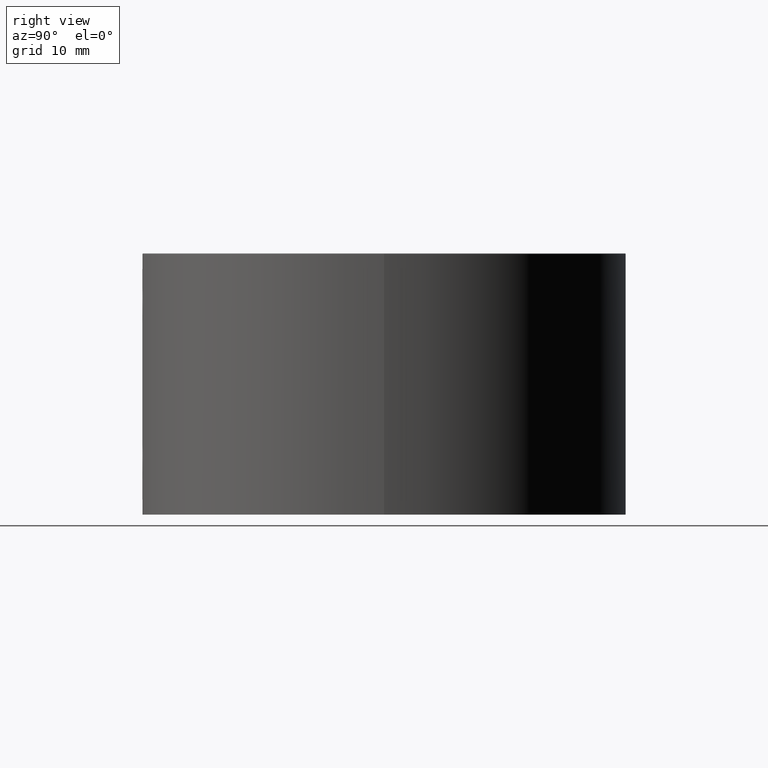
[diagram: clean part render]
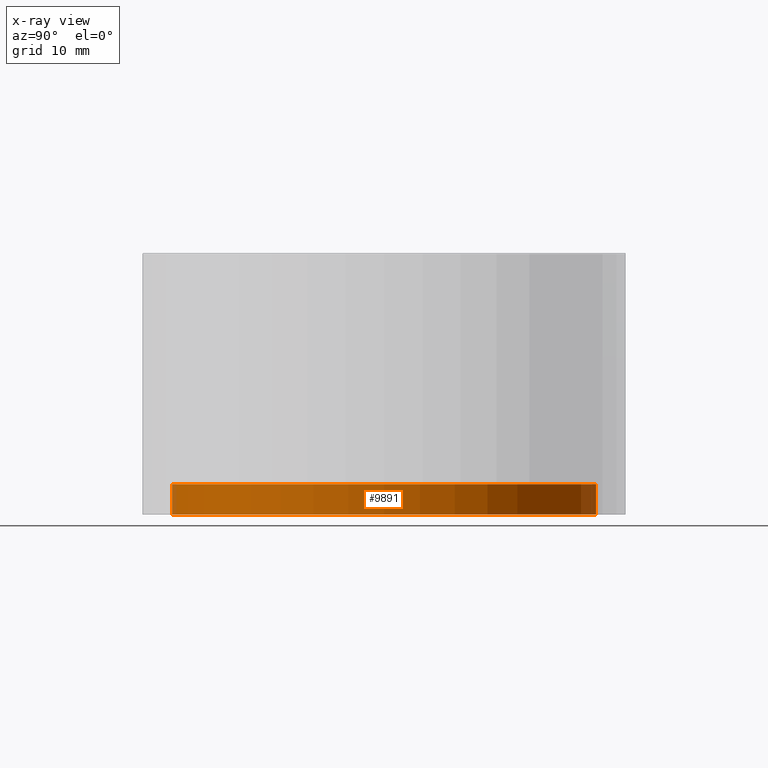
[diagram: x-ray — body ghosted, one internal face saturated and labeled with its STEP entity id]
A machine part, right view, then the same camera in x-ray: the body is ghosted and one INTERNAL B-rep face — a face not visible from any outside direction — is saturated and labeled: STEP entity #9891.
In plain terms, the highlighted cylindrical surface (bore or boss wall) has radius 24.35 mm, axis along (-0, -0, -1).
Its self-contained STEP definition (entity closure, byte-faithful):
#1031 = CARTESIAN_POINT ( 'NONE',  ( 0.000000000000000000, 0.000000000000000000, 0.000000000000000000 ) ) ;
#1238 = EDGE_LOOP ( 'NONE', ( #14457 ) ) ;
#1518 = AXIS2_PLACEMENT_3D ( 'NONE', #1031, #10002, #11138 ) ;
#2032 = CIRCLE ( 'NONE', #16030, 24.35000000000000497 ) ;
#2914 = CIRCLE ( 'NONE', #1518, 24.35000000000000497 ) ;
#3101 = FACE_OUTER_BOUND ( 'NONE', #1238, .T. ) ;
#3202 = EDGE_LOOP ( 'NONE', ( #11856 ) ) ;
#4093 = DIRECTION ( 'NONE',  ( -0.000000000000000000, -0.000000000000000000, -1.000000000000000000 ) ) ;
#4111 = CARTESIAN_POINT ( 'NONE',  ( 24.35000000000000497, 0.000000000000000000, 3.500000000000002220 ) ) ;
#4480 = DIRECTION ( 'NONE',  ( -1.000000000000000000, 0.000000000000000000, 0.000000000000000000 ) ) ;
#5311 = FACE_OUTER_BOUND ( 'NONE', #3202, .T. ) ;
#7907 = DIRECTION ( 'NONE',  ( 0.000000000000000000, 0.000000000000000000, 1.000000000000000000 ) ) ;
#8242 = VERTEX_POINT ( 'NONE', #4111 ) ;
#9062 = EDGE_CURVE ( 'NONE', #9443, #9443, #2914, .T. ) ;
#9063 = CARTESIAN_POINT ( 'NONE',  ( 0.000000000000000000, 0.000000000000000000, 3.500000000000002220 ) ) ;
#9443 = VERTEX_POINT ( 'NONE', #12941 ) ;
#9731 = AXIS2_PLACEMENT_3D ( 'NONE', #14535, #4093, #4480 ) ;
#9891 = ADVANCED_FACE ( 'NONE', ( #5311, #3101 ), #15746, .T. ) ;
#10002 = DIRECTION ( 'NONE',  ( 0.000000000000000000, 0.000000000000000000, 1.000000000000000000 ) ) ;
#11138 = DIRECTION ( 'NONE',  ( 1.000000000000000000, 0.000000000000000000, 0.000000000000000000 ) ) ;
#11856 = ORIENTED_EDGE ( 'NONE', *, *, #9062, .T. ) ;
#12941 = CARTESIAN_POINT ( 'NONE',  ( 24.35000000000000497, 0.000000000000000000, 0.000000000000000000 ) ) ;
#14209 = DIRECTION ( 'NONE',  ( 1.000000000000000000, 0.000000000000000000, 0.000000000000000000 ) ) ;
#14457 = ORIENTED_EDGE ( 'NONE', *, *, #14770, .F. ) ;
#14535 = CARTESIAN_POINT ( 'NONE',  ( 0.000000000000000000, 0.000000000000000000, 10.00000000000000000 ) ) ;
#14770 = EDGE_CURVE ( 'NONE', #8242, #8242, #2032, .T. ) ;
#15746 = CYLINDRICAL_SURFACE ( 'NONE', #9731, 24.35000000000000497 ) ;
#16030 = AXIS2_PLACEMENT_3D ( 'NONE', #9063, #7907, #14209 ) ;